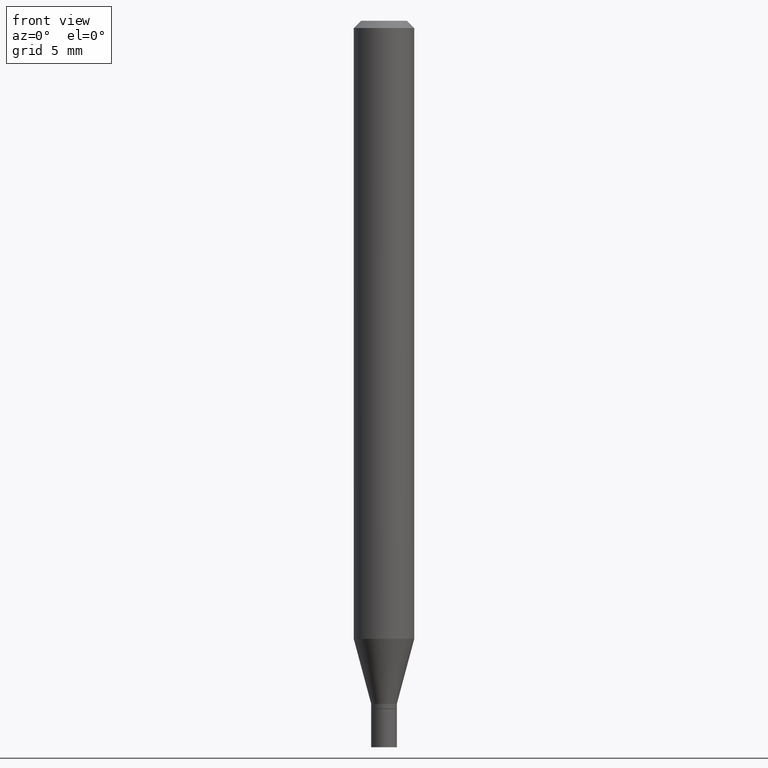
[diagram: clean part render]
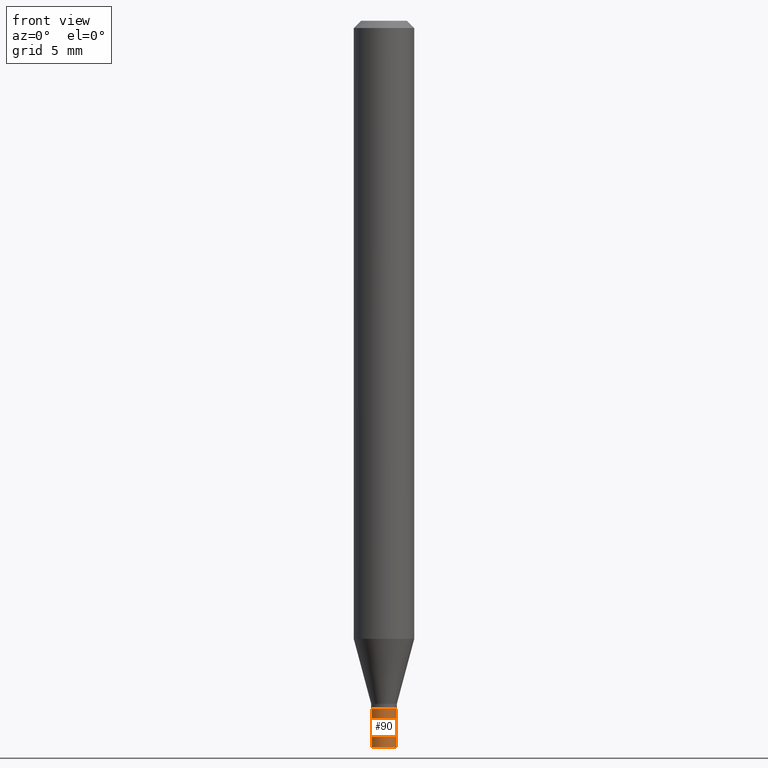
[diagram: same view with one face highlighted and labeled with its STEP entity id]
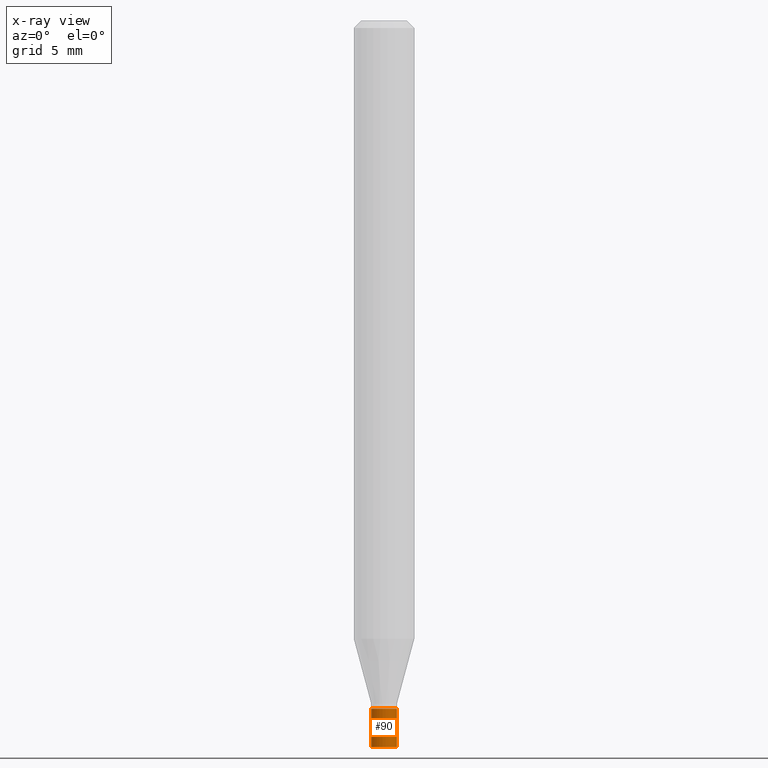
[diagram: x-ray of the same camera — body ghosted, the highlighted face saturated]
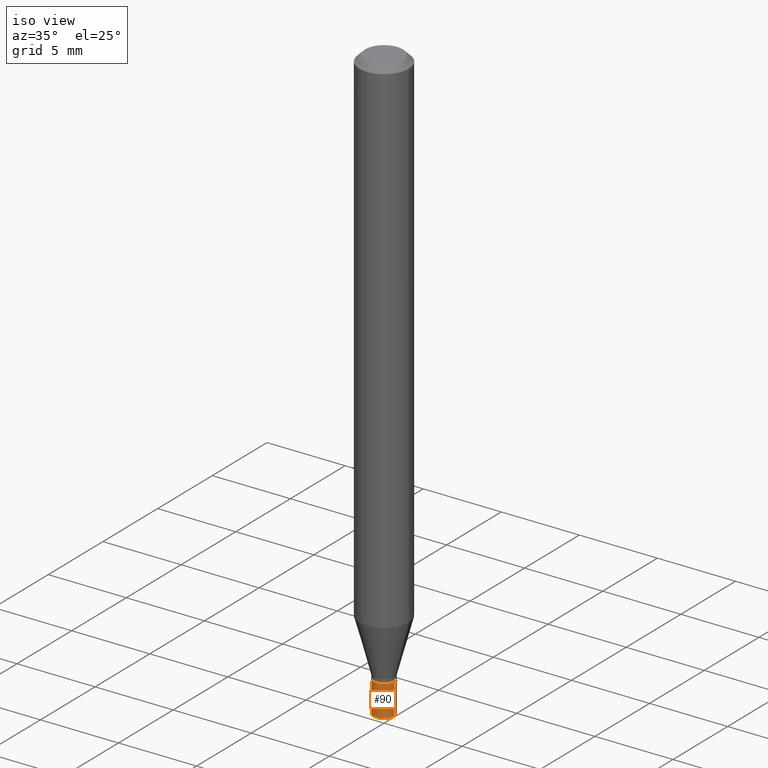
[diagram: same view with one face highlighted and labeled with its STEP entity id]
A machine part, front view. The second image highlights one B-rep face of the part: STEP entity #90.
The next image is the same camera in x-ray: the body ghosted, the highlighted face saturated — about 0% of this face is hidden behind the body in this view.
A second angle (iso view) of the same face is appended — the face is thin or edge-on in the first view.
In plain terms, the highlighted cylindrical surface (edge-blend (fillet) strip) has radius 0.6731 mm, axis along (-0, 0, 1).
Its self-contained STEP definition (entity closure, byte-faithful):
#12 = DIRECTION ( 'NONE',  ( -2.445468806185136877E-29, 3.491481338843145188E-15, 1.000000000000000000 ) ) ;
#15 = EDGE_CURVE ( 'NONE', #448, #163, #48, .T. ) ;
#30 = CARTESIAN_POINT ( 'NONE',  ( -0.02649999999999999925, -4.910141800069277982E-15, -1.420500000000000096 ) ) ;
#36 = LINE ( 'NONE', #417, #176 ) ;
#48 = CIRCLE ( 'NONE', #80, 0.02649999999999999925 ) ;
#53 = CARTESIAN_POINT ( 'NONE',  ( -0.02649999999999999925, 1.882938249764265439E-16, -1.303517798917549926E-30 ) ) ;
#70 = EDGE_CURVE ( 'NONE', #448, #291, #134, .T. ) ;
#80 = AXIS2_PLACEMENT_3D ( 'NONE', #308, #109, #390 ) ;
#84 = CARTESIAN_POINT ( 'NONE',  ( -0.02649999999999999925, -4.910141800069277982E-15, -1.500000000000000222 ) ) ;
#90 = ADVANCED_FACE ( 'NONE', ( #406 ), #341, .T. ) ;
#91 = CARTESIAN_POINT ( 'NONE',  ( 0.02649999999999999925, -5.422270519223404655E-15, -1.500000000000000222 ) ) ;
#109 = DIRECTION ( 'NONE',  ( -2.445468806185136597E-29, 3.491481338843145583E-15, 1.000000000000000000 ) ) ;
#110 = DIRECTION ( 'NONE',  ( -2.445468806185136877E-29, 3.491481338843145188E-15, 1.000000000000000000 ) ) ;
#112 = CARTESIAN_POINT ( 'NONE',  ( 3.473788439185986455E-29, -4.959649241826688854E-15, -1.420500000000000096 ) ) ;
#134 = LINE ( 'NONE', #53, #232 ) ;
#155 = VERTEX_POINT ( 'NONE', #407 ) ;
#163 = VERTEX_POINT ( 'NONE', #91 ) ;
#176 = VECTOR ( 'NONE', #110, 39.37007874015748143 ) ;
#189 = AXIS2_PLACEMENT_3D ( 'NONE', #112, #332, #429 ) ;
#232 = VECTOR ( 'NONE', #12, 39.37007874015748143 ) ;
#243 = DIRECTION ( 'NONE',  ( 1.000000000000000000, -6.982962677686266711E-15, 4.876176775795935793E-29 ) ) ;
#287 = CARTESIAN_POINT ( 'NONE',  ( 0.000000000000000000, 0.000000000000000000, 0.000000000000000000 ) ) ;
#291 = VERTEX_POINT ( 'NONE', #30 ) ;
#293 = ORIENTED_EDGE ( 'NONE', *, *, #70, .F. ) ;
#295 = ORIENTED_EDGE ( 'NONE', *, *, #328, .T. ) ;
#308 = CARTESIAN_POINT ( 'NONE',  ( 3.668203209277704895E-29, -5.237222008264718177E-15, -1.500000000000000222 ) ) ;
#313 = DIRECTION ( 'NONE',  ( -2.445468806185136597E-29, 3.491481338843145583E-15, 1.000000000000000000 ) ) ;
#320 = ORIENTED_EDGE ( 'NONE', *, *, #15, .T. ) ;
#328 = EDGE_CURVE ( 'NONE', #163, #155, #36, .T. ) ;
#332 = DIRECTION ( 'NONE',  ( -2.445468806185136597E-29, 3.491481338843145583E-15, 1.000000000000000000 ) ) ;
#340 = ORIENTED_EDGE ( 'NONE', *, *, #404, .F. ) ;
#341 = CYLINDRICAL_SURFACE ( 'NONE', #366, 0.02649999999999999925 ) ;
#366 = AXIS2_PLACEMENT_3D ( 'NONE', #287, #313, #243 ) ;
#390 = DIRECTION ( 'NONE',  ( 1.000000000000000000, -6.982962677686277755E-15, 0.000000000000000000 ) ) ;
#400 = EDGE_LOOP ( 'NONE', ( #293, #320, #295, #340 ) ) ;
#404 = EDGE_CURVE ( 'NONE', #291, #155, #465, .T. ) ;
#406 = FACE_OUTER_BOUND ( 'NONE', #400, .T. ) ;
#407 = CARTESIAN_POINT ( 'NONE',  ( 0.02649999999999999925, -5.144697752785374543E-15, -1.420500000000000096 ) ) ;
#417 = CARTESIAN_POINT ( 'NONE',  ( 0.02649999999999999925, -1.850485109586860590E-16, 1.292186845585922957E-30 ) ) ;
#429 = DIRECTION ( 'NONE',  ( 1.000000000000000000, -6.982962677686277755E-15, 0.000000000000000000 ) ) ;
#448 = VERTEX_POINT ( 'NONE', #84 ) ;
#465 = CIRCLE ( 'NONE', #189, 0.02649999999999999925 ) ;